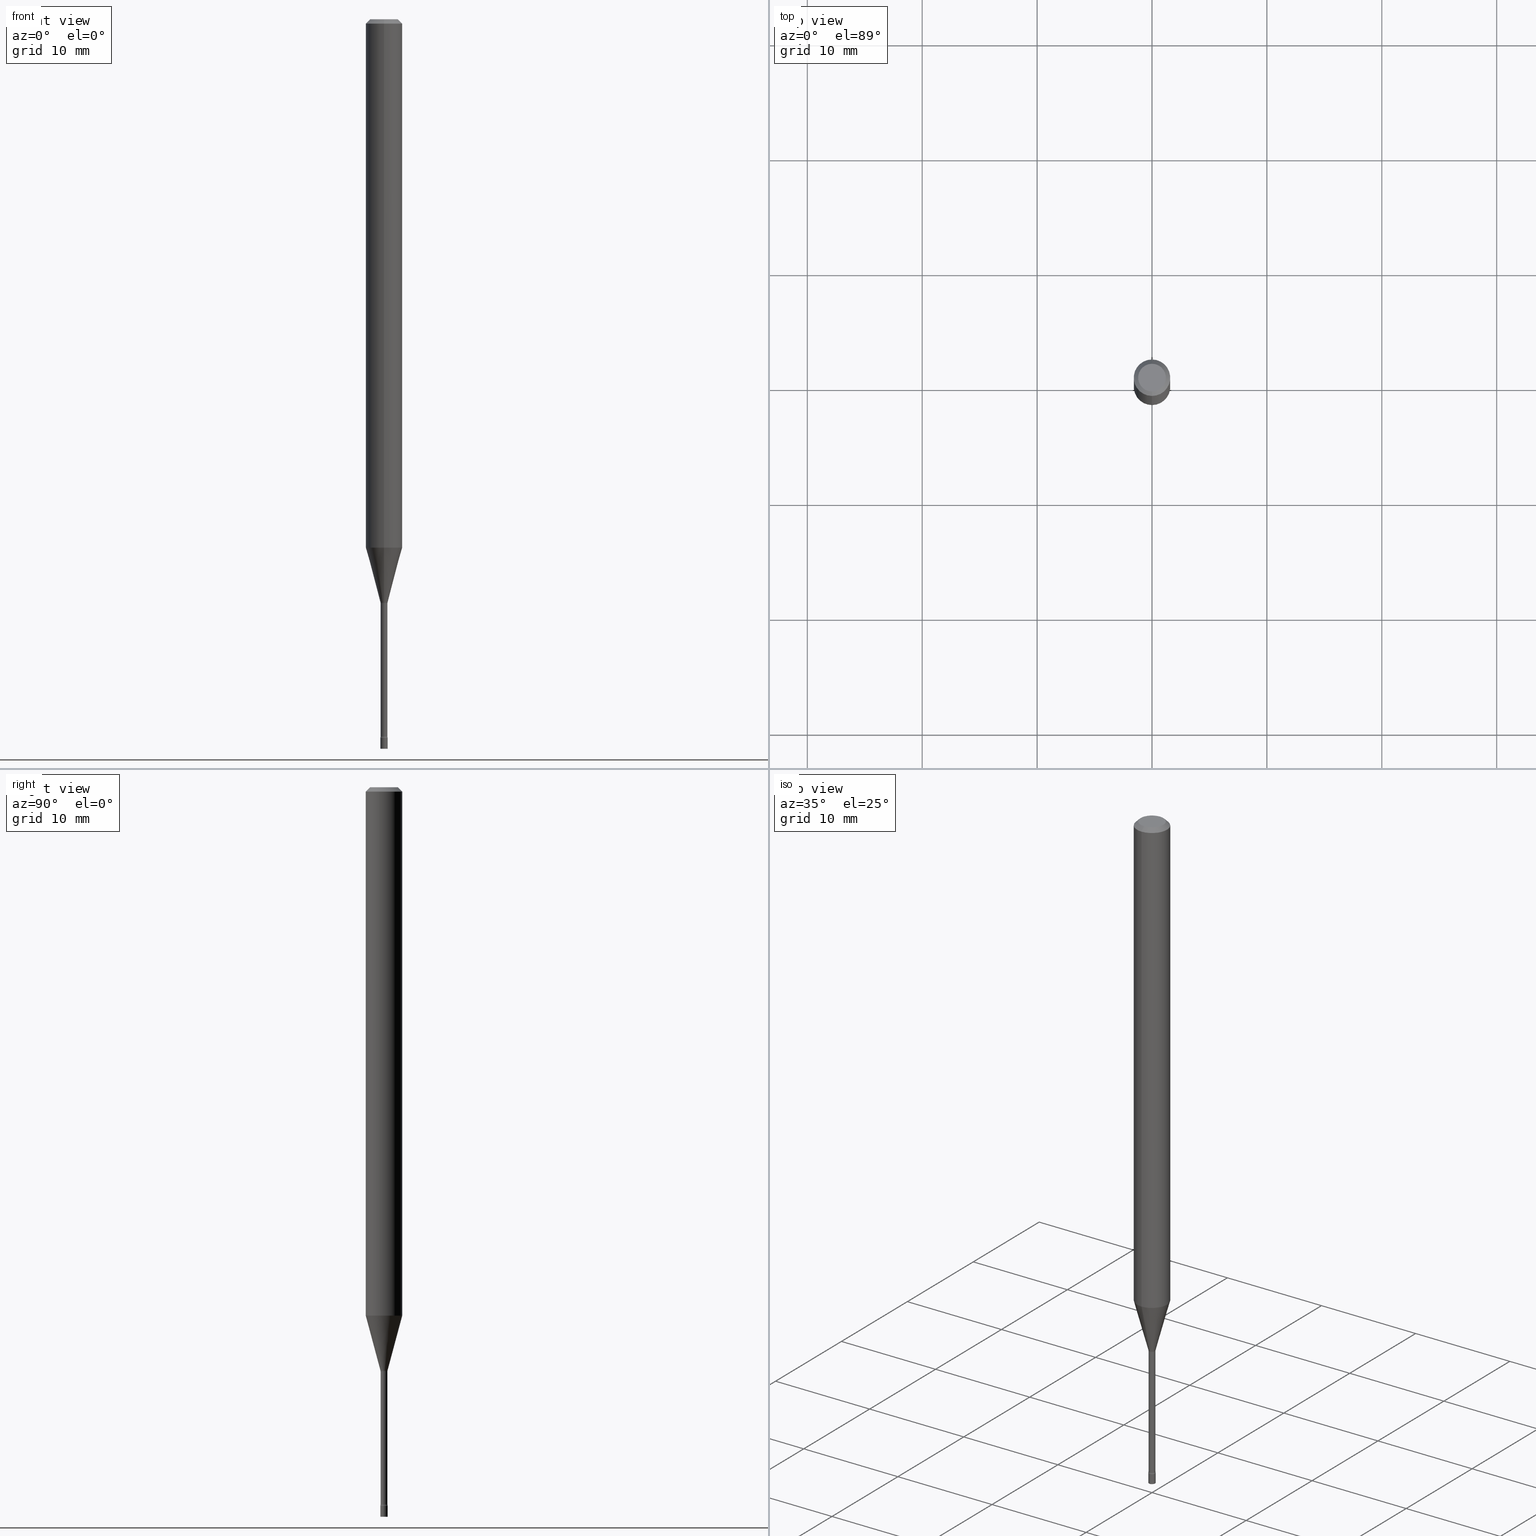
[diagram: canonical four-view strip — front | top / right | iso, engineering-drawing reading convention]
A machine part, canonical four-view strip (front | top / right | iso — engineering-drawing reading convention). The complete STEP part file that produces these views, byte-faithful:
ISO-10303-21;
HEADER;
FILE_DESCRIPTION (( 'STEP AP203' ),
    '1' );
FILE_NAME ('03646.STEP',
    '2024-03-08T22:19:38',
    ( '' ),
    ( '' ),
    'SwSTEP 2.0',
    'SolidWorks 2023',
    '' );
FILE_SCHEMA (( 'CONFIG_CONTROL_DESIGN' ));
ENDSEC;

DATA;
#1 = UNCERTAINTY_MEASURE_WITH_UNIT (LENGTH_MEASURE( 1.000000000000000082E-05 ), #212, 'distance_accuracy_value', 'NONE');
#2 = ORIENTED_EDGE ( 'NONE', *, *, #241, .T. ) ;
#3 = AXIS2_PLACEMENT_3D ( 'NONE', #336, #297, #502 ) ;
#4 = AXIS2_PLACEMENT_3D ( 'NONE', #264, #341, #378 ) ;
#5 = ORIENTED_EDGE ( 'NONE', *, *, #244, .F. ) ;
#6 = ORIENTED_EDGE ( 'NONE', *, *, #470, .T. ) ;
#7 = EDGE_CURVE ( 'NONE', #210, #359, #240, .T. ) ;
#8 = ORIENTED_EDGE ( 'NONE', *, *, #351, .F. ) ;
#9 = VERTEX_POINT ( 'NONE', #452 ) ;
#10 = ORIENTED_EDGE ( 'NONE', *, *, #96, .F. ) ;
#11 = AXIS2_PLACEMENT_3D ( 'NONE', #165, #335, #40 ) ;
#12 = LINE ( 'NONE', #421, #503 ) ;
#13 = DIRECTION ( 'NONE',  ( -6.982962677686265133E-15, -1.000000000000000000, 3.491373749768806451E-15 ) ) ;
#14 = CARTESIAN_POINT ( 'NONE',  ( 1.900701818158872917E-16, 0.02674999999999148198, -2.457316251501201698 ) ) ;
#15 = CARTESIAN_POINT ( 'NONE',  ( 6.009290239977977822E-29, -8.579673835752435391E-15, -2.457316251501201698 ) ) ;
#16 = CARTESIAN_POINT ( 'NONE',  ( 0.01250000000000000069, -8.728703347107834621E-17, 6.095220969744920617E-31 ) ) ;
#17 = CARTESIAN_POINT ( 'NONE',  ( 0.000000000000000000, 0.000000000000000000, 0.000000000000000000 ) ) ;
#18 = PRODUCT ( '03646', '03646', '', ( #219 ) ) ;
#19 = SHAPE_DEFINITION_REPRESENTATION ( #384, #407 ) ;
#20 = AXIS2_PLACEMENT_3D ( 'NONE', #185, #263, #294 ) ;
#21 = LINE ( 'NONE', #464, #193 ) ;
#22 = TOROIDAL_SURFACE ( 'NONE', #104, 0.02675000000000006192, 0.01500000000000000465 ) ;
#23 = DIRECTION ( 'NONE',  ( -6.982962677686265133E-15, -1.000000000000000000, 0.000000000000000000 ) ) ;
#24 = CC_DESIGN_PERSON_AND_ORGANIZATION_ASSIGNMENT ( #456, #402, ( #519 ) ) ;
#25 = LINE ( 'NONE', #188, #249 ) ;
#26 = LINE ( 'NONE', #145, #200 ) ;
#27 = FACE_OUTER_BOUND ( 'NONE', #120, .T. ) ;
#28 = DATE_AND_TIME ( #107, #151 ) ;
#29 = DIRECTION ( 'NONE',  ( -2.445543935234200466E-29, 3.491373749768806451E-15, 1.000000000000000000 ) ) ;
#30 = CLOSED_SHELL ( 'NONE', ( #108, #117, #213, #355 ) ) ;
#31 = AXIS2_PLACEMENT_3D ( 'NONE', #17, #231, #270 ) ;
#32 = FACE_OUTER_BOUND ( 'NONE', #203, .T. ) ;
#33 = AXIS2_PLACEMENT_3D ( 'NONE', #428, #98, #23 ) ;
#34 = CC_DESIGN_PERSON_AND_ORGANIZATION_ASSIGNMENT ( #467, #229, ( #285 ) ) ;
#35 = ORIENTED_EDGE ( 'NONE', *, *, #298, .T. ) ;
#36 = MANIFOLD_SOLID_BREP ( 'Body-Move/Copy2[2]', #312 ) ;
#37 = ORIENTED_EDGE ( 'NONE', *, *, #87, .F. ) ;
#38 = ORIENTED_EDGE ( 'NONE', *, *, #142, .T. ) ;
#39 = ORIENTED_EDGE ( 'NONE', *, *, #298, .F. ) ;
#40 = DIRECTION ( 'NONE',  ( 1.000000000000000000, 0.000000000000000000, 0.000000000000000000 ) ) ;
#41 = APPROVAL_PERSON_ORGANIZATION ( #206, #475, #125 ) ;
#42 = DIRECTION ( 'NONE',  ( -2.445543935234200466E-29, 3.491373749768806451E-15, 1.000000000000000000 ) ) ;
#43 = ORIENTED_EDGE ( 'NONE', *, *, #191, .F. ) ;
#44 = ORIENTED_EDGE ( 'NONE', *, *, #337, .F. ) ;
#45 = VERTEX_POINT ( 'NONE', #230 ) ;
#46 = EDGE_LOOP ( 'NONE', ( #293, #38, #326, #450 ) ) ;
#47 = CARTESIAN_POINT ( 'NONE',  ( 1.900701818158757547E-16, 0.02674999999999301201, -2.001974787463811190 ) ) ;
#48 = DIRECTION ( 'NONE',  ( -2.445543935234200466E-29, 3.491373749768806451E-15, 1.000000000000000000 ) ) ;
#49 = DIRECTION ( 'NONE',  ( -2.445543935234200466E-29, 3.491373749768806451E-15, 1.000000000000000000 ) ) ;
#50 = EDGE_CURVE ( 'NONE', #192, #164, #492, .T. ) ;
#51 = CC_DESIGN_SECURITY_CLASSIFICATION ( #285, ( #513 ) ) ;
#52 = CARTESIAN_POINT ( 'NONE',  ( -0.01250000000000000069, -8.573547359699832444E-15, -2.500000000000000000 ) ) ;
#53 = DIRECTION ( 'NONE',  ( 6.982962677686265922E-15, 1.000000000000000000, -3.491373749768806056E-15 ) ) ;
#54 = DIRECTION ( 'NONE',  ( -1.807323732225327773E-15, -0.2588190451025178529, 0.9659258262890690894 ) ) ;
#55 = FACE_OUTER_BOUND ( 'NONE', #115, .T. ) ;
#56 = CALENDAR_DATE ( 2024, 8, 3 ) ;
#57 = FACE_OUTER_BOUND ( 'NONE', #490, .T. ) ;
#58 = ADVANCED_FACE ( 'NONE', ( #57 ), #132, .T. ) ;
#59 = CARTESIAN_POINT ( 'NONE',  ( -1.867942516280587025E-16, -0.02675000000000699388, -2.001974787463811190 ) ) ;
#60 = DATE_AND_TIME ( #382, #441 ) ;
#61 = AXIS2_PLACEMENT_3D ( 'NONE', #148, #311, #429 ) ;
#62 = DIRECTION ( 'NONE',  ( 1.000000000000000000, -6.982962677686265922E-15, 4.876176775795935793E-29 ) ) ;
#63 = CARTESIAN_POINT ( 'NONE',  ( 6.009474855811202142E-29, -8.579409455371578347E-15, -2.457316251501201698 ) ) ;
#64 = LINE ( 'NONE', #110, #469 ) ;
#65 = ORIENTED_EDGE ( 'NONE', *, *, #204, .T. ) ;
#66 = APPROVAL_STATUS ( 'not_yet_approved' ) ;
#67 = CARTESIAN_POINT ( 'NONE',  ( 6.113672015462842613E-29, -8.728703347107864943E-15, -2.500000000000000000 ) ) ;
#68 = CYLINDRICAL_SURFACE ( 'NONE', #226, 0.01250000000000000069 ) ;
#69 = AXIS2_PLACEMENT_3D ( 'NONE', #93, #419, #146 ) ;
#70 = CIRCLE ( 'NONE', #156, 0.06250000000000000000 ) ;
#71 = CARTESIAN_POINT ( 'NONE',  ( 3.668315902851307968E-31, -5.237060624653220720E-17, -0.01500000000000003067 ) ) ;
#72 = EDGE_LOOP ( 'NONE', ( #2, #410, #10, #170 ) ) ;
#73 = AXIS2_PLACEMENT_3D ( 'NONE', #259, #416, #222 ) ;
#74 = AXIS2_PLACEMENT_3D ( 'NONE', #465, #90, #296 ) ;
#75 = ORIENTED_EDGE ( 'NONE', *, *, #315, .F. ) ;
#76 = EDGE_CURVE ( 'NONE', #445, #9, #21, .T. ) ;
#77 = VERTEX_POINT ( 'NONE', #340 ) ;
#78 = ORIENTED_EDGE ( 'NONE', *, *, #401, .T. ) ;
#79 = CONICAL_SURFACE ( 'NONE', #73, 0.01226111260566398360, 0.2617993877991499074 ) ;
#80 = ORIENTED_EDGE ( 'NONE', *, *, #114, .T. ) ;
#81 = ORIENTED_EDGE ( 'NONE', *, *, #489, .F. ) ;
#82 = ORIENTED_EDGE ( 'NONE', *, *, #321, .T. ) ;
#83 = CARTESIAN_POINT ( 'NONE',  ( 7.072273741944370430E-46, -1.009671122160360057E-31, -2.891902140890012348E-17 ) ) ;
#84 = FACE_OUTER_BOUND ( 'NONE', #72, .T. ) ;
#85 = ORIENTED_EDGE ( 'NONE', *, *, #194, .T. ) ;
#86 = CARTESIAN_POINT ( 'NONE',  ( 6.020744200827806517E-29, -8.596027056231825938E-15, -2.462000000000000188 ) ) ;
#87 = EDGE_CURVE ( 'NONE', #210, #129, #440, .T. ) ;
#88 = DIRECTION ( 'NONE',  ( -6.982962677686263555E-15, -1.000000000000000000, 0.000000000000000000 ) ) ;
#89 = DIRECTION ( 'NONE',  ( 7.105427357601001859E-15, 1.000000000000000000, 0.000000000000000000 ) ) ;
#90 = DIRECTION ( 'NONE',  ( -2.445543935234200466E-29, 3.491373749768806451E-15, 1.000000000000000000 ) ) ;
#91 = AXIS2_PLACEMENT_3D ( 'NONE', #308, #388, #62 ) ;
#92 = CIRCLE ( 'NONE', #175, 0.01175000000000000350 ) ;
#93 = CARTESIAN_POINT ( 'NONE',  ( 4.886422999782796356E-29, -6.976087710349966842E-15, -1.998092501787273045 ) ) ;
#94 = PLANE ( 'NONE',  #261 ) ;
#95 = DIRECTION ( 'NONE',  ( -6.982962677686265922E-15, -1.000000000000000000, 0.000000000000000000 ) ) ;
#96 = EDGE_CURVE ( 'NONE', #123, #207, #277, .T. ) ;
#97 = ADVANCED_FACE ( 'NONE', ( #306 ), #100, .T. ) ;
#98 = DIRECTION ( 'NONE',  ( -2.445543935234200466E-29, 3.491373749768806451E-15, 1.000000000000000000 ) ) ;
#99 = SECURITY_CLASSIFICATION_LEVEL ( 'unclassified' ) ;
#100 = CYLINDRICAL_SURFACE ( 'NONE', #385, 0.06250000000000000000 ) ;
#101 = CARTESIAN_POINT ( 'NONE',  ( 6.009290239977977822E-29, -8.579673835752435391E-15, -2.457316251501201698 ) ) ;
#102 = EDGE_LOOP ( 'NONE', ( #284, #174 ) ) ;
#103 = CARTESIAN_POINT ( 'NONE',  ( 0.000000000000000000, 0.000000000000000000, 0.000000000000000000 ) ) ;
#104 = AXIS2_PLACEMENT_3D ( 'NONE', #101, #376, #13 ) ;
#105 = PERSON_AND_ORGANIZATION ( #488, #278 ) ;
#106 = CARTESIAN_POINT ( 'NONE',  ( 0.000000000000000000, 0.000000000000000000, 0.000000000000000000 ) ) ;
#107 = CALENDAR_DATE ( 2024, 8, 3 ) ;
#108 = ADVANCED_FACE ( 'NONE', ( #84 ), #268, .T. ) ;
#109 = DATE_AND_TIME ( #305, #386 ) ;
#110 = CARTESIAN_POINT ( 'NONE',  ( 8.348877145181198158E-17, 0.01175000000000003125, -4.102364155978358491E-17 ) ) ;
#111 = DIRECTION ( 'NONE',  ( -6.982962677686268288E-15, -1.000000000000000000, 0.000000000000000000 ) ) ;
#112 = CC_DESIGN_APPROVAL ( #309, ( #519 ) ) ;
#113 = EDGE_CURVE ( 'NONE', #242, #359, #332, .T. ) ;
#114 = EDGE_CURVE ( 'NONE', #9, #211, #484, .T. ) ;
#115 = EDGE_LOOP ( 'NONE', ( #406, #37, #82, #78 ) ) ;
#116 = ORIENTED_EDGE ( 'NONE', *, *, #113, .T. ) ;
#117 = ADVANCED_FACE ( 'NONE', ( #495 ), #383, .T. ) ;
#118 = CIRCLE ( 'NONE', #478, 0.01175000000000000350 ) ;
#119 = AXIS2_PLACEMENT_3D ( 'NONE', #71, #157, #352 ) ;
#120 = EDGE_LOOP ( 'NONE', ( #209, #81, #124, #80 ) ) ;
#121 = EDGE_CURVE ( 'NONE', #520, #123, #139, .T. ) ;
#122 = CARTESIAN_POINT ( 'NONE',  ( 0.01250000000000000069, -8.815990380578941699E-15, -2.500000000000000000 ) ) ;
#123 = VERTEX_POINT ( 'NONE', #265 ) ;
#124 = ORIENTED_EDGE ( 'NONE', *, *, #76, .T. ) ;
#125 = APPROVAL_ROLE ( '' ) ;
#126 = EDGE_LOOP ( 'NONE', ( #358, #324, #438, #5 ) ) ;
#127 = DIMENSIONAL_EXPONENTS ( 1.000000000000000000, 0.000000000000000000, 0.000000000000000000, 0.000000000000000000, 0.000000000000000000, 0.000000000000000000, 0.000000000000000000 ) ;
#128 = AXIS2_PLACEMENT_3D ( 'NONE', #14, #458, #89 ) ;
#129 = VERTEX_POINT ( 'NONE', #342 ) ;
#130 = DIRECTION ( 'NONE',  ( -2.445468806185136597E-29, 3.491481338843145583E-15, 1.000000000000000000 ) ) ;
#131 = CC_DESIGN_APPROVAL ( #152, ( #285 ) ) ;
#132 = CYLINDRICAL_SURFACE ( 'NONE', #397, 0.06250000000000000000 ) ;
#133 = EDGE_CURVE ( 'NONE', #192, #77, #149, .T. ) ;
#134 = VERTEX_POINT ( 'NONE', #52 ) ;
#135 = APPLICATION_PROTOCOL_DEFINITION ( 'international standard', 'config_control_design', 1994, #455 ) ;
#136 = FACE_OUTER_BOUND ( 'NONE', #286, .T. ) ;
#137 = DIRECTION ( 'NONE',  ( -2.445468806185136597E-29, 3.491481338843145583E-15, 1.000000000000000000 ) ) ;
#138 = DIRECTION ( 'NONE',  ( -6.982962677686265922E-15, -1.000000000000000000, 4.370956789862821150E-15 ) ) ;
#139 = LINE ( 'NONE', #16, #408 ) ;
#140 = CARTESIAN_POINT ( 'NONE',  ( 4.427897988882776251E-29, -6.321475800253379253E-15, -1.810598421515879908 ) ) ;
#141 = AXIS2_PLACEMENT_3D ( 'NONE', #103, #272, #353 ) ;
#142 = EDGE_CURVE ( 'NONE', #134, #520, #173, .T. ) ;
#143 = AXIS2_PLACEMENT_3D ( 'NONE', #47, #491, #365 ) ;
#144 = DIRECTION ( 'NONE',  ( -2.445468806185136877E-29, 3.491481338843145188E-15, 1.000000000000000000 ) ) ;
#145 = CARTESIAN_POINT ( 'NONE',  ( -8.204981146281383550E-17, -0.01175000000000003125, 4.102364155978358491E-17 ) ) ;
#146 = DIRECTION ( 'NONE',  ( -6.982962677686265922E-15, -1.000000000000000000, 0.000000000000000000 ) ) ;
#147 = FACE_OUTER_BOUND ( 'NONE', #497, .T. ) ;
#148 = CARTESIAN_POINT ( 'NONE',  ( 4.886422999782796356E-29, -6.976087710349966842E-15, -1.998092501787273045 ) ) ;
#149 = CIRCLE ( 'NONE', #291, 0.01175000000000005901 ) ;
#150 = DIRECTION ( 'NONE',  ( 1.000000000000000000, -6.982962677686267499E-15, 4.876176775795936353E-29 ) ) ;
#151 = LOCAL_TIME ( 17, 19, 38.00000000000000000, #375 ) ;
#152 = APPROVAL ( #66, 'UNSPECIFIED' ) ;
#153 = DIRECTION ( 'NONE',  ( -6.982962677686265922E-15, -1.000000000000000000, 3.483106191921935554E-15 ) ) ;
#154 = CARTESIAN_POINT ( 'NONE',  ( -1.867942516280479789E-16, -0.02675000000000864187, -2.457316251501201698 ) ) ;
#155 = EDGE_CURVE ( 'NONE', #161, #211, #12, .T. ) ;
#156 = AXIS2_PLACEMENT_3D ( 'NONE', #140, #418, #138 ) ;
#157 = DIRECTION ( 'NONE',  ( 2.445543935234200466E-29, -3.491373749768806451E-15, -1.000000000000000000 ) ) ;
#158 = EDGE_LOOP ( 'NONE', ( #255, #281, #364, #44 ) ) ;
#159 = EDGE_LOOP ( 'NONE', ( #393, #405, #411, #412 ) ) ;
#160 = DATE_AND_TIME ( #442, #417 ) ;
#161 = VERTEX_POINT ( 'NONE', #501 ) ;
#162 = AXIS2_PLACEMENT_3D ( 'NONE', #195, #317, #314 ) ;
#163 = AXIS2_PLACEMENT_3D ( 'NONE', #59, #182, #88 ) ;
#164 = VERTEX_POINT ( 'NONE', #499 ) ;
#165 = CARTESIAN_POINT ( 'NONE',  ( 0.000000000000000000, 0.000000000000000000, 0.000000000000000000 ) ) ;
#166 = EDGE_LOOP ( 'NONE', ( #254, #6, #65, #289 ) ) ;
#167 = ADVANCED_FACE ( 'NONE', ( #454 ), #79, .T. ) ;
#168 = EDGE_LOOP ( 'NONE', ( #39, #329 ) ) ;
#169 = PERSON_AND_ORGANIZATION ( #488, #278 ) ;
#170 = ORIENTED_EDGE ( 'NONE', *, *, #121, .F. ) ;
#171 = CC_DESIGN_PERSON_AND_ORGANIZATION_ASSIGNMENT ( #274, #233, ( #513 ) ) ;
#172 = CARTESIAN_POINT ( 'NONE',  ( 6.113672015462842613E-29, -8.728703347107864943E-15, -2.500000000000000000 ) ) ;
#173 = CIRCLE ( 'NONE', #218, 0.01250000000000000069 ) ;
#174 = ORIENTED_EDGE ( 'NONE', *, *, #516, .T. ) ;
#175 = AXIS2_PLACEMENT_3D ( 'NONE', #368, #357, #280 ) ;
#176 = DIRECTION ( 'NONE',  ( -4.851104656540964275E-15, -0.7071067811865500152, -0.7071067811865450192 ) ) ;
#177 = DIRECTION ( 'NONE',  ( -6.982962677686265922E-15, -1.000000000000000000, 3.491373749768806451E-15 ) ) ;
#178 = EDGE_CURVE ( 'NONE', #161, #445, #183, .T. ) ;
#179 = FACE_OUTER_BOUND ( 'NONE', #168, .T. ) ;
#180 = DIRECTION ( 'NONE',  ( -2.445543935234200466E-29, 3.491373749768806451E-15, 1.000000000000000000 ) ) ;
#181 = CIRCLE ( 'NONE', #477, 0.01500000000000000291 ) ;
#182 = DIRECTION ( 'NONE',  ( -1.000000000000000000, 6.982962677686265922E-15, -4.883557194083112901E-29 ) ) ;
#183 = CIRCLE ( 'NONE', #512, 0.04749999999999999362 ) ;
#184 = APPROVAL_PERSON_ORGANIZATION ( #394, #152, #345 ) ;
#185 = CARTESIAN_POINT ( 'NONE',  ( 6.020744200827806517E-29, -8.596027056231825938E-15, -2.462000000000000188 ) ) ;
#186 = EDGE_CURVE ( 'NONE', #134, #207, #474, .T. ) ;
#187 = DIRECTION ( 'NONE',  ( -6.982962677686265922E-15, -1.000000000000000000, 0.000000000000000000 ) ) ;
#188 = CARTESIAN_POINT ( 'NONE',  ( 4.440892098500625669E-16, 0.06250000000000000000, -2.182108593605504032E-16 ) ) ;
#189 = DIRECTION ( 'NONE',  ( -6.982962677686266711E-15, -1.000000000000000000, 3.491373749768806451E-15 ) ) ;
#190 = DIRECTION ( 'NONE',  ( -2.445468806185136877E-29, 3.491481338843145188E-15, 1.000000000000000000 ) ) ;
#191 = EDGE_CURVE ( 'NONE', #192, #45, #64, .T. ) ;
#192 = VERTEX_POINT ( 'NONE', #316 ) ;
#193 = VECTOR ( 'NONE', #346, 39.37007874015748143 ) ;
#194 = EDGE_CURVE ( 'NONE', #211, #9, #283, .T. ) ;
#195 = CARTESIAN_POINT ( 'NONE',  ( 3.668315902851307968E-31, -5.237060624653220720E-17, -0.01500000000000003067 ) ) ;
#196 = COORDINATED_UNIVERSAL_TIME_OFFSET ( 5, 0, .BEHIND. ) ;
#197 = DATE_TIME_ROLE ( 'classification_date' ) ;
#198 = FACE_OUTER_BOUND ( 'NONE', #46, .T. ) ;
#199 = ADVANCED_FACE ( 'NONE', ( #27 ), #323, .T. ) ;
#200 = VECTOR ( 'NONE', #266, 39.37007874015748143 ) ;
#201 = AXIS2_PLACEMENT_3D ( 'NONE', #426, #42, #214 ) ;
#202 = CARTESIAN_POINT ( 'NONE',  ( 8.712044494296022145E-17, 0.01226111260565700654, -1.998092501787273045 ) ) ;
#204 = EDGE_CURVE ( 'NONE', #45, #483, #118, .T. ) ;
#203 = EDGE_LOOP ( 'NONE', ( #287, #481, #422, #248 ) ) ;
#205 = DIRECTION ( 'NONE',  ( -6.982962677686266711E-15, -1.000000000000000000, 3.491373749768806845E-15 ) ) ;
#206 = PERSON_AND_ORGANIZATION ( #488, #278 ) ;
#207 = VERTEX_POINT ( 'NONE', #276 ) ;
#208 = AXIS2_PLACEMENT_3D ( 'NONE', #83, #247, #205 ) ;
#209 = ORIENTED_EDGE ( 'NONE', *, *, #155, .F. ) ;
#210 = VERTEX_POINT ( 'NONE', #271 ) ;
#211 = VERTEX_POINT ( 'NONE', #431 ) ;
#212 =( CONVERSION_BASED_UNIT ( 'INCH', #330 ) LENGTH_UNIT ( ) NAMED_UNIT ( #127 ) );
#213 = ADVANCED_FACE ( 'NONE', ( #198 ), #68, .T. ) ;
#214 = DIRECTION ( 'NONE',  ( -6.982962677686266711E-15, -1.000000000000000000, 3.491373749768806451E-15 ) ) ;
#215 = ORIENTED_EDGE ( 'NONE', *, *, #489, .T. ) ;
#216 = CARTESIAN_POINT ( 'NONE',  ( 3.840629472727447874E-16, 0.04749999999999999362, -1.947592745229184119E-16 ) ) ;
#217 = CARTESIAN_POINT ( 'NONE',  ( 6.009474855811202142E-29, -8.579409455371578347E-15, -2.457316251501201698 ) ) ;
#218 = AXIS2_PLACEMENT_3D ( 'NONE', #172, #137, #462 ) ;
#219 = MECHANICAL_CONTEXT ( 'NONE', #496, 'mechanical' ) ;
#220 = AXIS2_PLACEMENT_3D ( 'NONE', #343, #223, #189 ) ;
#221 = DIRECTION ( 'NONE',  ( -6.982962677686265133E-15, -1.000000000000000000, 3.491373749768806451E-15 ) ) ;
#222 = DIRECTION ( 'NONE',  ( -6.982962677686265922E-15, -1.000000000000000000, 0.000000000000000000 ) ) ;
#223 = DIRECTION ( 'NONE',  ( -2.445543935234200466E-29, 3.491373749768806451E-15, 1.000000000000000000 ) ) ;
#224 = CARTESIAN_POINT ( 'NONE',  ( 0.000000000000000000, 0.000000000000000000, 0.000000000000000000 ) ) ;
#225 = DIRECTION ( 'NONE',  ( -2.445543935234200466E-29, 3.491373749768806451E-15, 1.000000000000000000 ) ) ;
#226 = AXIS2_PLACEMENT_3D ( 'NONE', #106, #511, #150 ) ;
#227 = CARTESIAN_POINT ( 'NONE',  ( -4.364351673553916201E-16, -0.06250000000000000000, 2.182108593605504032E-16 ) ) ;
#228 = AXIS2_PLACEMENT_3D ( 'NONE', #508, #304, #53 ) ;
#229 = PERSON_AND_ORGANIZATION_ROLE ( 'classification_officer' ) ;
#230 = CARTESIAN_POINT ( 'NONE',  ( 8.348877145187204594E-17, 0.01174999999999301430, -2.001974787463811190 ) ) ;
#231 = DIRECTION ( 'NONE',  ( -2.445543935234200466E-29, 3.491373749768806451E-15, 1.000000000000000000 ) ) ;
#232 = CARTESIAN_POINT ( 'NONE',  ( 3.668315902851307968E-31, -5.237060624653220720E-17, -0.01500000000000003067 ) ) ;
#233 = PERSON_AND_ORGANIZATION_ROLE ( 'design_supplier' ) ;
#234 = CARTESIAN_POINT ( 'NONE',  ( 7.072273741944370430E-46, -1.009671122160360057E-31, -2.891902140890012348E-17 ) ) ;
#235 = AXIS2_PLACEMENT_3D ( 'NONE', #377, #48, #413 ) ;
#236 = DIRECTION ( 'NONE',  ( -6.982962677686265922E-15, -1.000000000000000000, 0.000000000000000000 ) ) ;
#237 = CIRCLE ( 'NONE', #163, 0.01500000000000002720 ) ;
#238 = ADVANCED_FACE ( 'NONE', ( #32 ), #468, .T. ) ;
#239 = DIRECTION ( 'NONE',  ( 1.839019923739597554E-15, 0.2588190451025245697, 0.9659258262890670910 ) ) ;
#240 = LINE ( 'NONE', #300, #373 ) ;
#241 = EDGE_CURVE ( 'NONE', #520, #134, #362, .T. ) ;
#242 = VERTEX_POINT ( 'NONE', #517 ) ;
#243 = ORIENTED_EDGE ( 'NONE', *, *, #244, .T. ) ;
#244 = EDGE_CURVE ( 'NONE', #77, #252, #181, .T. ) ;
#245 = ORIENTED_EDGE ( 'NONE', *, *, #133, .T. ) ;
#246 = EDGE_LOOP ( 'NONE', ( #369, #443, #85, #334 ) ) ;
#247 = DIRECTION ( 'NONE',  ( -2.445543935234200466E-29, 3.491373749768806451E-15, 1.000000000000000000 ) ) ;
#248 = ORIENTED_EDGE ( 'NONE', *, *, #288, .F. ) ;
#249 = VECTOR ( 'NONE', #509, 39.37007874015748143 ) ;
#250 = EDGE_CURVE ( 'NONE', #242, #9, #25, .T. ) ;
#251 = CC_DESIGN_APPROVAL ( #475, ( #513 ) ) ;
#252 = VERTEX_POINT ( 'NONE', #348 ) ;
#253 = PERSON_AND_ORGANIZATION_ROLE ( 'design_owner' ) ;
#254 = ORIENTED_EDGE ( 'NONE', *, *, #279, .F. ) ;
#255 = ORIENTED_EDGE ( 'NONE', *, *, #351, .T. ) ;
#256 = DIRECTION ( 'NONE',  ( -6.982962677686265922E-15, -1.000000000000000000, 3.491373749768806451E-15 ) ) ;
#257 = PERSON_AND_ORGANIZATION ( #488, #278 ) ;
#258 = FACE_OUTER_BOUND ( 'NONE', #166, .T. ) ;
#259 = CARTESIAN_POINT ( 'NONE',  ( 4.886422999782796356E-29, -6.976087710349966842E-15, -1.998092501787273045 ) ) ;
#260 = AXIS2_PLACEMENT_3D ( 'NONE', #424, #507, #379 ) ;
#261 = AXIS2_PLACEMENT_3D ( 'NONE', #500, #299, #420 ) ;
#262 = FACE_OUTER_BOUND ( 'NONE', #126, .T. ) ;
#263 = DIRECTION ( 'NONE',  ( -2.445468806185136597E-29, 3.491481338843145583E-15, 1.000000000000000000 ) ) ;
#264 = CARTESIAN_POINT ( 'NONE',  ( 8.728703347113945828E-17, 0.01249999999999127157, -2.500000000000000000 ) ) ;
#265 = CARTESIAN_POINT ( 'NONE',  ( 0.01250000000000000069, -8.683314089702904272E-15, -2.462000000000000188 ) ) ;
#266 = DIRECTION ( 'NONE',  ( -2.445543935234200466E-29, 3.491373749768806056E-15, 1.000000000000000000 ) ) ;
#267 = COORDINATED_UNIVERSAL_TIME_OFFSET ( 5, 0, .BEHIND. ) ;
#268 = CYLINDRICAL_SURFACE ( 'NONE', #260, 0.01250000000000000069 ) ;
#269 = CC_DESIGN_PERSON_AND_ORGANIZATION_ASSIGNMENT ( #105, #310, ( #513 ) ) ;
#270 = DIRECTION ( 'NONE',  ( -6.982962677686265133E-15, -1.000000000000000000, 3.491373749768806451E-15 ) ) ;
#271 = CARTESIAN_POINT ( 'NONE',  ( -8.561889171221134275E-17, -0.01226111260567096066, -1.998092501787273045 ) ) ;
#272 = DIRECTION ( 'NONE',  ( -2.445543935234200466E-29, 3.491373749768806451E-15, 1.000000000000000000 ) ) ;
#273 = APPROVAL_DATE_TIME ( #28, #309 ) ;
#274 = PERSON_AND_ORGANIZATION ( #488, #278 ) ;
#275 = CC_DESIGN_PERSON_AND_ORGANIZATION_ASSIGNMENT ( #169, #253, ( #18 ) ) ;
#276 = CARTESIAN_POINT ( 'NONE',  ( -0.01250000000000000069, -8.573547359699832444E-15, -2.462000000000000188 ) ) ;
#277 = CIRCLE ( 'NONE', #20, 0.01250000000000000069 ) ;
#278 = ORGANIZATION ( 'UNSPECIFIED', 'UNSPECIFIED', '' ) ;
#279 = EDGE_CURVE ( 'NONE', #129, #210, #318, .T. ) ;
#280 = DIRECTION ( 'NONE',  ( -6.982962677686265922E-15, -1.000000000000000000, 0.000000000000000000 ) ) ;
#281 = ORIENTED_EDGE ( 'NONE', *, *, #250, .T. ) ;
#282 = EDGE_CURVE ( 'NONE', #164, #252, #354, .T. ) ;
#283 = CIRCLE ( 'NONE', #301, 0.06250000000000000000 ) ;
#284 = ORIENTED_EDGE ( 'NONE', *, *, #96, .T. ) ;
#285 = SECURITY_CLASSIFICATION ( '', '', #99 ) ;
#286 = EDGE_LOOP ( 'NONE', ( #328, #514 ) ) ;
#287 = ORIENTED_EDGE ( 'NONE', *, *, #315, .T. ) ;
#288 = EDGE_CURVE ( 'NONE', #77, #483, #26, .T. ) ;
#289 = ORIENTED_EDGE ( 'NONE', *, *, #321, .F. ) ;
#290 =( LENGTH_UNIT ( ) NAMED_UNIT ( * ) SI_UNIT ( $, .METRE. ) );
#291 = AXIS2_PLACEMENT_3D ( 'NONE', #217, #372, #95 ) ;
#292 = CIRCLE ( 'NONE', #333, 0.01175000000000005901 ) ;
#293 = ORIENTED_EDGE ( 'NONE', *, *, #186, .F. ) ;
#294 = DIRECTION ( 'NONE',  ( 1.000000000000000000, -6.982962677686294321E-15, 0.000000000000000000 ) ) ;
#295 =( NAMED_UNIT ( * ) SI_UNIT ( $, .STERADIAN. ) SOLID_ANGLE_UNIT ( ) );
#296 = DIRECTION ( 'NONE',  ( -6.982962677686265922E-15, -1.000000000000000000, 0.000000000000000000 ) ) ;
#297 = DIRECTION ( 'NONE',  ( -2.445543935234200466E-29, 3.491373749768806451E-15, 1.000000000000000000 ) ) ;
#298 = EDGE_CURVE ( 'NONE', #252, #164, #518, .T. ) ;
#299 = DIRECTION ( 'NONE',  ( -2.445543935234200186E-29, 3.491373749768806056E-15, 1.000000000000000000 ) ) ;
#300 = CARTESIAN_POINT ( 'NONE',  ( -8.561889171221134275E-17, -0.01226111260567096066, -1.998092501787273045 ) ) ;
#301 = AXIS2_PLACEMENT_3D ( 'NONE', #232, #392, #153 ) ;
#302 = ADVANCED_FACE ( 'NONE', ( #258 ), #459, .F. ) ;
#303 = CIRCLE ( 'NONE', #143, 0.01500000000000002720 ) ;
#304 = DIRECTION ( 'NONE',  ( 2.445543935234200186E-29, -3.491373749768806056E-15, -1.000000000000000000 ) ) ;
#305 = CALENDAR_DATE ( 2024, 8, 3 ) ;
#306 = FACE_OUTER_BOUND ( 'NONE', #158, .T. ) ;
#307 = DIRECTION ( 'NONE',  ( -2.445543935234200466E-29, 3.491373749768806056E-15, 1.000000000000000000 ) ) ;
#308 = CARTESIAN_POINT ( 'NONE',  ( 6.020744200827806517E-29, -8.596027056231825938E-15, -2.462000000000000188 ) ) ;
#309 = APPROVAL ( #361, 'UNSPECIFIED' ) ;
#310 = PERSON_AND_ORGANIZATION_ROLE ( 'creator' ) ;
#311 = DIRECTION ( 'NONE',  ( -2.445543935234200466E-29, 3.491373749768806451E-15, 1.000000000000000000 ) ) ;
#312 = CLOSED_SHELL ( 'NONE', ( #302, #238, #380, #436, #97, #371, #167, #58, #199, #366, #396, #381, #344, #398 ) ) ;
#313 = CONICAL_SURFACE ( 'NONE', #74, 0.01226111260566398360, 0.2617993877991499074 ) ;
#314 = DIRECTION ( 'NONE',  ( 6.982962677686265922E-15, 1.000000000000000000, -3.483106191921935554E-15 ) ) ;
#315 = EDGE_CURVE ( 'NONE', #77, #192, #292, .T. ) ;
#316 = CARTESIAN_POINT ( 'NONE',  ( 8.615330671097248563E-17, 0.01174999999999147907, -2.457316251501201698 ) ) ;
#317 = DIRECTION ( 'NONE',  ( 2.445543935234200466E-29, -3.491373749768806451E-15, -1.000000000000000000 ) ) ;
#318 = CIRCLE ( 'NONE', #61, 0.01226111260566398360 ) ;
#319 = CIRCLE ( 'NONE', #471, 0.01250000000000000069 ) ;
#321 = EDGE_CURVE ( 'NONE', #210, #483, #237, .T. ) ;
#320 = EDGE_LOOP ( 'NONE', ( #215, #370 ) ) ;
#322 = DATE_TIME_ROLE ( 'creation_date' ) ;
#323 = CONICAL_SURFACE ( 'NONE', #162, 0.06250000000000000000, 0.7853981633974483900 ) ;
#324 = ORIENTED_EDGE ( 'NONE', *, *, #50, .T. ) ;
#325 = TOROIDAL_SURFACE ( 'NONE', #363, 0.02675000000000006192, 0.01500000000000000465 ) ;
#326 = ORIENTED_EDGE ( 'NONE', *, *, #121, .T. ) ;
#327 =( NAMED_UNIT ( * ) PLANE_ANGLE_UNIT ( ) SI_UNIT ( $, .RADIAN. ) );
#328 = ORIENTED_EDGE ( 'NONE', *, *, #241, .F. ) ;
#329 = ORIENTED_EDGE ( 'NONE', *, *, #282, .F. ) ;
#330 = LENGTH_MEASURE_WITH_UNIT ( LENGTH_MEASURE( 0.02539999999999999897 ), #290 );
#331 = CARTESIAN_POINT ( 'NONE',  ( 0.000000000000000000, 0.000000000000000000, 0.000000000000000000 ) ) ;
#332 = CIRCLE ( 'NONE', #3, 0.06250000000000000000 ) ;
#333 = AXIS2_PLACEMENT_3D ( 'NONE', #63, #423, #187 ) ;
#334 = ORIENTED_EDGE ( 'NONE', *, *, #76, .F. ) ;
#335 = DIRECTION ( 'NONE',  ( 0.000000000000000000, 0.000000000000000000, 1.000000000000000000 ) ) ;
#336 = CARTESIAN_POINT ( 'NONE',  ( 4.427897988882776251E-29, -6.321475800253379253E-15, -1.810598421515879908 ) ) ;
#337 = EDGE_CURVE ( 'NONE', #359, #211, #453, .T. ) ;
#338 = DIRECTION ( 'NONE',  ( 1.000000000000000000, -6.982962677686294321E-15, 0.000000000000000000 ) ) ;
#339 = FACE_OUTER_BOUND ( 'NONE', #506, .T. ) ;
#340 = CARTESIAN_POINT ( 'NONE',  ( -8.204981146275393138E-17, -0.01175000000000863895, -2.457316251501201698 ) ) ;
#341 = DIRECTION ( 'NONE',  ( 2.438088387897960049E-29, -3.491481338843145188E-15, -1.000000000000000000 ) ) ;
#342 = CARTESIAN_POINT ( 'NONE',  ( 2.656048273965336302E-16, 0.01226111260565700654, -1.998092501787273045 ) ) ;
#343 = CARTESIAN_POINT ( 'NONE',  ( 4.895766893511868006E-29, -6.989857611264368100E-15, -2.001974787463811190 ) ) ;
#344 = ADVANCED_FACE ( 'NONE', ( #415 ), #498, .T. ) ;
#345 = APPROVAL_ROLE ( '' ) ;
#346 = DIRECTION ( 'NONE',  ( 4.937700262164548042E-15, 0.7071067811865451302, -0.7071067811865499042 ) ) ;
#347 = PLANE ( 'NONE',  #228 ) ;
#348 = CARTESIAN_POINT ( 'NONE',  ( -8.728703347101813393E-17, -0.01250000000000859625, -2.462000000000000188 ) ) ;
#349 = DIRECTION ( 'NONE',  ( -2.445543935234200466E-29, 3.491373749768806451E-15, 1.000000000000000000 ) ) ;
#350 = CARTESIAN_POINT ( 'NONE',  ( -0.01250000000000000069, 8.881784197001252816E-17, -6.148668862818633278E-31 ) ) ;
#351 = EDGE_CURVE ( 'NONE', #359, #242, #70, .T. ) ;
#352 = DIRECTION ( 'NONE',  ( 6.982962677686265922E-15, 1.000000000000000000, -3.483106191921935554E-15 ) ) ;
#353 = DIRECTION ( 'NONE',  ( -6.982962677686265133E-15, -1.000000000000000000, 3.491373749768806451E-15 ) ) ;
#354 = CIRCLE ( 'NONE', #425, 0.01250000000000000069 ) ;
#355 = ADVANCED_FACE ( 'NONE', ( #136 ), #457, .T. ) ;
#356 = VECTOR ( 'NONE', #239, 39.37007874015748854 ) ;
#357 = DIRECTION ( 'NONE',  ( -2.445543935234200466E-29, 3.491373749768806451E-15, 1.000000000000000000 ) ) ;
#358 = ORIENTED_EDGE ( 'NONE', *, *, #133, .F. ) ;
#359 = VERTEX_POINT ( 'NONE', #387 ) ;
#360 = ORIENTED_EDGE ( 'NONE', *, *, #250, .F. ) ;
#361 = APPROVAL_STATUS ( 'not_yet_approved' ) ;
#362 = CIRCLE ( 'NONE', #434, 0.01250000000000000069 ) ;
#363 = AXIS2_PLACEMENT_3D ( 'NONE', #15, #49, #221 ) ;
#364 = ORIENTED_EDGE ( 'NONE', *, *, #194, .F. ) ;
#365 = DIRECTION ( 'NONE',  ( 7.105427357601000281E-15, 1.000000000000000000, 0.000000000000000000 ) ) ;
#366 = ADVANCED_FACE ( 'NONE', ( #389 ), #347, .F. ) ;
#367 = EDGE_LOOP ( 'NONE', ( #43, #245, #448, #486 ) ) ;
#368 = CARTESIAN_POINT ( 'NONE',  ( 4.895917299973899418E-29, -6.989642220650134303E-15, -2.001974787463811190 ) ) ;
#369 = ORIENTED_EDGE ( 'NONE', *, *, #178, .F. ) ;
#370 = ORIENTED_EDGE ( 'NONE', *, *, #178, .T. ) ;
#371 = ADVANCED_FACE ( 'NONE', ( #339 ), #313, .T. ) ;
#372 = DIRECTION ( 'NONE',  ( -2.445543935234200466E-29, 3.491373749768806451E-15, 1.000000000000000000 ) ) ;
#373 = VECTOR ( 'NONE', #54, 39.37007874015748143 ) ;
#374 = APPROVAL_PERSON_ORGANIZATION ( #257, #309, #414 ) ;
#375 = COORDINATED_UNIVERSAL_TIME_OFFSET ( 5, 0, .BEHIND. ) ;
#376 = DIRECTION ( 'NONE',  ( -2.445543935234200466E-29, 3.491373749768806451E-15, 1.000000000000000000 ) ) ;
#377 = CARTESIAN_POINT ( 'NONE',  ( 3.668315902851307968E-31, -5.237060624653220720E-17, -0.01500000000000003067 ) ) ;
#378 = DIRECTION ( 'NONE',  ( -1.000000000000000000, 6.982962677686265922E-15, -4.876176775795935793E-29 ) ) ;
#379 = DIRECTION ( 'NONE',  ( 1.000000000000000000, -6.982962677686267499E-15, 4.876176775795936353E-29 ) ) ;
#380 = ADVANCED_FACE ( 'NONE', ( #262 ), #325, .F. ) ;
#381 = ADVANCED_FACE ( 'NONE', ( #147 ), #22, .F. ) ;
#382 = CALENDAR_DATE ( 2024, 8, 3 ) ;
#383 = PLANE ( 'NONE',  #91 ) ;
#384 = PRODUCT_DEFINITION_SHAPE ( 'NONE', 'NONE',  #519 ) ;
#385 = AXIS2_PLACEMENT_3D ( 'NONE', #224, #225, #256 ) ;
#386 = LOCAL_TIME ( 17, 19, 38.00000000000000000, #432 ) ;
#387 = CARTESIAN_POINT ( 'NONE',  ( -4.364351673553473946E-16, -0.06250000000000632827, -1.810598421515879464 ) ) ;
#388 = DIRECTION ( 'NONE',  ( -2.438088387897960049E-29, 3.491481338843145188E-15, 1.000000000000000000 ) ) ;
#389 = FACE_OUTER_BOUND ( 'NONE', #320, .T. ) ;
#390 = DESIGN_CONTEXT ( 'detailed design', #455, 'design' ) ;
#391 = DATE_AND_TIME ( #56, #409 ) ;
#392 = DIRECTION ( 'NONE',  ( -2.445543935234200466E-29, 3.491373749768806451E-15, 1.000000000000000000 ) ) ;
#393 = ORIENTED_EDGE ( 'NONE', *, *, #444, .F. ) ;
#394 = PERSON_AND_ORGANIZATION ( #488, #278 ) ;
#395 = DIRECTION ( 'NONE',  ( -2.445543935234200466E-29, 3.491373749768806056E-15, 1.000000000000000000 ) ) ;
#396 = ADVANCED_FACE ( 'NONE', ( #179 ), #94, .F. ) ;
#397 = AXIS2_PLACEMENT_3D ( 'NONE', #331, #180, #177 ) ;
#398 = ADVANCED_FACE ( 'NONE', ( #55 ), #403, .F. ) ;
#399 = DIRECTION ( 'NONE',  ( 1.000000000000000000, -6.982962677686216223E-15, 0.000000000000000000 ) ) ;
#400 = MANIFOLD_SOLID_BREP ( 'Body-Move/Copy2[1]', #30 ) ;
#401 = EDGE_CURVE ( 'NONE', #483, #45, #92, .T. ) ;
#402 = PERSON_AND_ORGANIZATION_ROLE ( 'creator' ) ;
#403 = TOROIDAL_SURFACE ( 'NONE', #201, 0.02675000000000000294, 0.01500000000000002547 ) ;
#404 = ORIENTED_EDGE ( 'NONE', *, *, #444, .T. ) ;
#405 = ORIENTED_EDGE ( 'NONE', *, *, #279, .T. ) ;
#406 = ORIENTED_EDGE ( 'NONE', *, *, #470, .F. ) ;
#407 = ADVANCED_BREP_SHAPE_REPRESENTATION ( '03646', ( #400, #36, #11 ), #504 ) ;
#408 = VECTOR ( 'NONE', #144, 39.37007874015748143 ) ;
#409 = LOCAL_TIME ( 17, 19, 38.00000000000000000, #267 ) ;
#410 = ORIENTED_EDGE ( 'NONE', *, *, #186, .T. ) ;
#411 = ORIENTED_EDGE ( 'NONE', *, *, #7, .T. ) ;
#412 = ORIENTED_EDGE ( 'NONE', *, *, #113, .F. ) ;
#413 = DIRECTION ( 'NONE',  ( -6.982962677686265922E-15, -1.000000000000000000, 3.483106191921935554E-15 ) ) ;
#414 = APPROVAL_ROLE ( '' ) ;
#415 = FACE_OUTER_BOUND ( 'NONE', #367, .T. ) ;
#416 = DIRECTION ( 'NONE',  ( -2.445543935234200466E-29, 3.491373749768806451E-15, 1.000000000000000000 ) ) ;
#417 = LOCAL_TIME ( 17, 19, 38.00000000000000000, #196 ) ;
#418 = DIRECTION ( 'NONE',  ( -2.445543935234200466E-29, 3.491373749768806451E-15, 1.000000000000000000 ) ) ;
#419 = DIRECTION ( 'NONE',  ( -2.445543935234200466E-29, 3.491373749768806451E-15, 1.000000000000000000 ) ) ;
#420 = DIRECTION ( 'NONE',  ( -6.982962677686265922E-15, -1.000000000000000000, 3.491373749768806056E-15 ) ) ;
#421 = CARTESIAN_POINT ( 'NONE',  ( -4.287811248607203282E-16, -0.06250000000000005551, -0.01499999999999981209 ) ) ;
#422 = ORIENTED_EDGE ( 'NONE', *, *, #401, .F. ) ;
#423 = DIRECTION ( 'NONE',  ( -2.445543935234200466E-29, 3.491373749768806451E-15, 1.000000000000000000 ) ) ;
#424 = CARTESIAN_POINT ( 'NONE',  ( 0.000000000000000000, 0.000000000000000000, 0.000000000000000000 ) ) ;
#425 = AXIS2_PLACEMENT_3D ( 'NONE', #460, #505, #463 ) ;
#426 = CARTESIAN_POINT ( 'NONE',  ( 4.895766893511868006E-29, -6.989857611264368100E-15, -2.001974787463811190 ) ) ;
#427 = VECTOR ( 'NONE', #307, 39.37007874015748143 ) ;
#428 = CARTESIAN_POINT ( 'NONE',  ( 6.020929168546601482E-29, -8.595762171930802024E-15, -2.462000000000000188 ) ) ;
#429 = DIRECTION ( 'NONE',  ( -6.982962677686265922E-15, -1.000000000000000000, 0.000000000000000000 ) ) ;
#430 = CC_DESIGN_DATE_AND_TIME_ASSIGNMENT ( #391, #197, ( #285 ) ) ;
#431 = CARTESIAN_POINT ( 'NONE',  ( -4.364351673553912750E-16, -0.06250000000000005551, -0.01499999999999981209 ) ) ;
#432 = COORDINATED_UNIVERSAL_TIME_OFFSET ( 5, 0, .BEHIND. ) ;
#433 = DIRECTION ( 'NONE',  ( -2.445468806185136597E-29, 3.491481338843145583E-15, 1.000000000000000000 ) ) ;
#434 = AXIS2_PLACEMENT_3D ( 'NONE', #67, #433, #399 ) ;
#435 = CIRCLE ( 'NONE', #208, 0.04749999999999999362 ) ;
#436 = ADVANCED_FACE ( 'NONE', ( #437 ), #494, .T. ) ;
#437 = FACE_OUTER_BOUND ( 'NONE', #246, .T. ) ;
#438 = ORIENTED_EDGE ( 'NONE', *, *, #282, .T. ) ;
#439 = LINE ( 'NONE', #202, #356 ) ;
#440 = CIRCLE ( 'NONE', #69, 0.01226111260566398360 ) ;
#441 = LOCAL_TIME ( 17, 19, 38.00000000000000000, #510 ) ;
#442 = CALENDAR_DATE ( 2024, 8, 3 ) ;
#443 = ORIENTED_EDGE ( 'NONE', *, *, #155, .T. ) ;
#444 = EDGE_CURVE ( 'NONE', #129, #242, #439, .T. ) ;
#445 = VERTEX_POINT ( 'NONE', #216 ) ;
#446 = APPLICATION_PROTOCOL_DEFINITION ( 'international standard', 'config_control_design', 1994, #496 ) ;
#447 = VECTOR ( 'NONE', #190, 39.37007874015748143 ) ;
#448 = ORIENTED_EDGE ( 'NONE', *, *, #288, .T. ) ;
#449 = CC_DESIGN_DATE_AND_TIME_ASSIGNMENT ( #160, #322, ( #519 ) ) ;
#450 = ORIENTED_EDGE ( 'NONE', *, *, #516, .F. ) ;
#451 = CARTESIAN_POINT ( 'NONE',  ( -8.204981146276470426E-17, -0.01175000000000699270, -2.001974787463811190 ) ) ;
#452 = CARTESIAN_POINT ( 'NONE',  ( 4.440892098501070882E-16, 0.06249999999999995143, -0.01500000000000024751 ) ) ;
#453 = LINE ( 'NONE', #227, #427 ) ;
#454 = FACE_OUTER_BOUND ( 'NONE', #159, .T. ) ;
#455 = APPLICATION_CONTEXT ( 'configuration controlled 3d designs of mechanical parts and assemblies' ) ;
#456 = PERSON_AND_ORGANIZATION ( #488, #278 ) ;
#457 = PLANE ( 'NONE',  #4 ) ;
#458 = DIRECTION ( 'NONE',  ( 1.000000000000000000, -7.105427357601001070E-15, 4.926314190955927655E-29 ) ) ;
#459 = TOROIDAL_SURFACE ( 'NONE', #220, 0.02675000000000000294, 0.01500000000000002547 ) ;
#460 = CARTESIAN_POINT ( 'NONE',  ( 6.020929168546601482E-29, -8.595762171930802024E-15, -2.462000000000000188 ) ) ;
#461 = APPROVAL_DATE_TIME ( #109, #152 ) ;
#462 = DIRECTION ( 'NONE',  ( 1.000000000000000000, -6.982962677686216223E-15, 0.000000000000000000 ) ) ;
#463 = DIRECTION ( 'NONE',  ( -6.982962677686265133E-15, -1.000000000000000000, 0.000000000000000000 ) ) ;
#464 = CARTESIAN_POINT ( 'NONE',  ( 4.364351673553919652E-16, 0.06249999999999995143, -0.01500000000000024751 ) ) ;
#465 = CARTESIAN_POINT ( 'NONE',  ( 4.886422999782796356E-29, -6.976087710349966842E-15, -1.998092501787273045 ) ) ;
#466 = ORIENTED_EDGE ( 'NONE', *, *, #7, .F. ) ;
#467 = PERSON_AND_ORGANIZATION ( #488, #278 ) ;
#468 = CYLINDRICAL_SURFACE ( 'NONE', #141, 0.01175000000000003125 ) ;
#469 = VECTOR ( 'NONE', #395, 39.37007874015748143 ) ;
#470 = EDGE_CURVE ( 'NONE', #129, #45, #303, .T. ) ;
#471 = AXIS2_PLACEMENT_3D ( 'NONE', #86, #130, #338 ) ;
#472 = DIRECTION ( 'NONE',  ( -6.982962677686266711E-15, -1.000000000000000000, 3.491373749768806845E-15 ) ) ;
#473 = APPROVAL_DATE_TIME ( #60, #475 ) ;
#474 = LINE ( 'NONE', #350, #447 ) ;
#475 = APPROVAL ( #493, 'UNSPECIFIED' ) ;
#476 = DIRECTION ( 'NONE',  ( -1.000000000000000000, 6.982962677686265922E-15, -4.883557194083112901E-29 ) ) ;
#477 = AXIS2_PLACEMENT_3D ( 'NONE', #154, #476, #111 ) ;
#478 = AXIS2_PLACEMENT_3D ( 'NONE', #515, #349, #236 ) ;
#479 = ORIENTED_EDGE ( 'NONE', *, *, #87, .T. ) ;
#480 = ORIENTED_EDGE ( 'NONE', *, *, #50, .F. ) ;
#481 = ORIENTED_EDGE ( 'NONE', *, *, #191, .T. ) ;
#482 = PRODUCT_RELATED_PRODUCT_CATEGORY ( 'detail', '', ( #18 ) ) ;
#483 = VERTEX_POINT ( 'NONE', #451 ) ;
#484 = CIRCLE ( 'NONE', #235, 0.06250000000000000000 ) ;
#485 = ORIENTED_EDGE ( 'NONE', *, *, #114, .F. ) ;
#486 = ORIENTED_EDGE ( 'NONE', *, *, #204, .F. ) ;
#487 = ORIENTED_EDGE ( 'NONE', *, *, #337, .T. ) ;
#488 = PERSON ( 'UNSPECIFIED', 'UNSPECIFIED', 'UNSPECIFIED', ('UNSPECIFIED'), ('UNSPECIFIED'), ('UNSPECIFIED') ) ;
#489 = EDGE_CURVE ( 'NONE', #445, #161, #435, .T. ) ;
#490 = EDGE_LOOP ( 'NONE', ( #360, #116, #487, #485 ) ) ;
#491 = DIRECTION ( 'NONE',  ( 1.000000000000000000, -7.105427357601001070E-15, 4.926314190955927655E-29 ) ) ;
#492 = CIRCLE ( 'NONE', #128, 0.01500000000000000291 ) ;
#493 = APPROVAL_STATUS ( 'not_yet_approved' ) ;
#494 = CONICAL_SURFACE ( 'NONE', #119, 0.06250000000000000000, 0.7853981633974483900 ) ;
#495 = FACE_OUTER_BOUND ( 'NONE', #102, .T. ) ;
#496 = APPLICATION_CONTEXT ( 'configuration controlled 3d designs of mechanical parts and assemblies' ) ;
#497 = EDGE_LOOP ( 'NONE', ( #480, #75, #243, #35 ) ) ;
#498 = CYLINDRICAL_SURFACE ( 'NONE', #31, 0.01175000000000003125 ) ;
#499 = CARTESIAN_POINT ( 'NONE',  ( 8.881784197007269113E-17, 0.01249999999999140167, -2.462000000000000188 ) ) ;
#500 = CARTESIAN_POINT ( 'NONE',  ( 8.728703347113853383E-17, 0.01249999999999140514, -2.462000000000000188 ) ) ;
#501 = CARTESIAN_POINT ( 'NONE',  ( -3.773273898774340269E-16, -0.04749999999999999362, 1.369212317051181526E-16 ) ) ;
#502 = DIRECTION ( 'NONE',  ( -6.982962677686265922E-15, -1.000000000000000000, 4.370956789862821150E-15 ) ) ;
#503 = VECTOR ( 'NONE', #176, 39.37007874015748143 ) ;
#504 =( GEOMETRIC_REPRESENTATION_CONTEXT ( 3 ) GLOBAL_UNCERTAINTY_ASSIGNED_CONTEXT ( ( #1 ) ) GLOBAL_UNIT_ASSIGNED_CONTEXT ( ( #212, #327, #295 ) ) REPRESENTATION_CONTEXT ( 'NONE', 'WORKASPACE' ) );
#505 = DIRECTION ( 'NONE',  ( -2.445543935234200466E-29, 3.491373749768806451E-15, 1.000000000000000000 ) ) ;
#506 = EDGE_LOOP ( 'NONE', ( #479, #404, #8, #466 ) ) ;
#507 = DIRECTION ( 'NONE',  ( -2.445468806185136597E-29, 3.491481338843145583E-15, 1.000000000000000000 ) ) ;
#508 = CARTESIAN_POINT ( 'NONE',  ( 3.316907271900976096E-16, 0.04749999999999999362, -1.802997638184683532E-16 ) ) ;
#509 = DIRECTION ( 'NONE',  ( -2.445543935234200466E-29, 3.491373749768806056E-15, 1.000000000000000000 ) ) ;
#510 = COORDINATED_UNIVERSAL_TIME_OFFSET ( 5, 0, .BEHIND. ) ;
#511 = DIRECTION ( 'NONE',  ( -2.445468806185136597E-29, 3.491481338843145583E-15, 1.000000000000000000 ) ) ;
#512 = AXIS2_PLACEMENT_3D ( 'NONE', #234, #29, #472 ) ;
#513 = PRODUCT_DEFINITION_FORMATION_WITH_SPECIFIED_SOURCE ( 'ANY', '', #18, .NOT_KNOWN. ) ;
#514 = ORIENTED_EDGE ( 'NONE', *, *, #142, .F. ) ;
#515 = CARTESIAN_POINT ( 'NONE',  ( 4.895917299973899418E-29, -6.989642220650134303E-15, -2.001974787463811190 ) ) ;
#516 = EDGE_CURVE ( 'NONE', #207, #123, #319, .T. ) ;
#517 = CARTESIAN_POINT ( 'NONE',  ( 4.440892098501067924E-16, 0.06249999999999367867, -1.810598421515880130 ) ) ;
#518 = CIRCLE ( 'NONE', #33, 0.01250000000000000069 ) ;
#520 = VERTEX_POINT ( 'NONE', #122 ) ;
#519 = PRODUCT_DEFINITION ( 'UNKNOWN', '', #513, #390 ) ;
ENDSEC;
END-ISO-10303-21;
